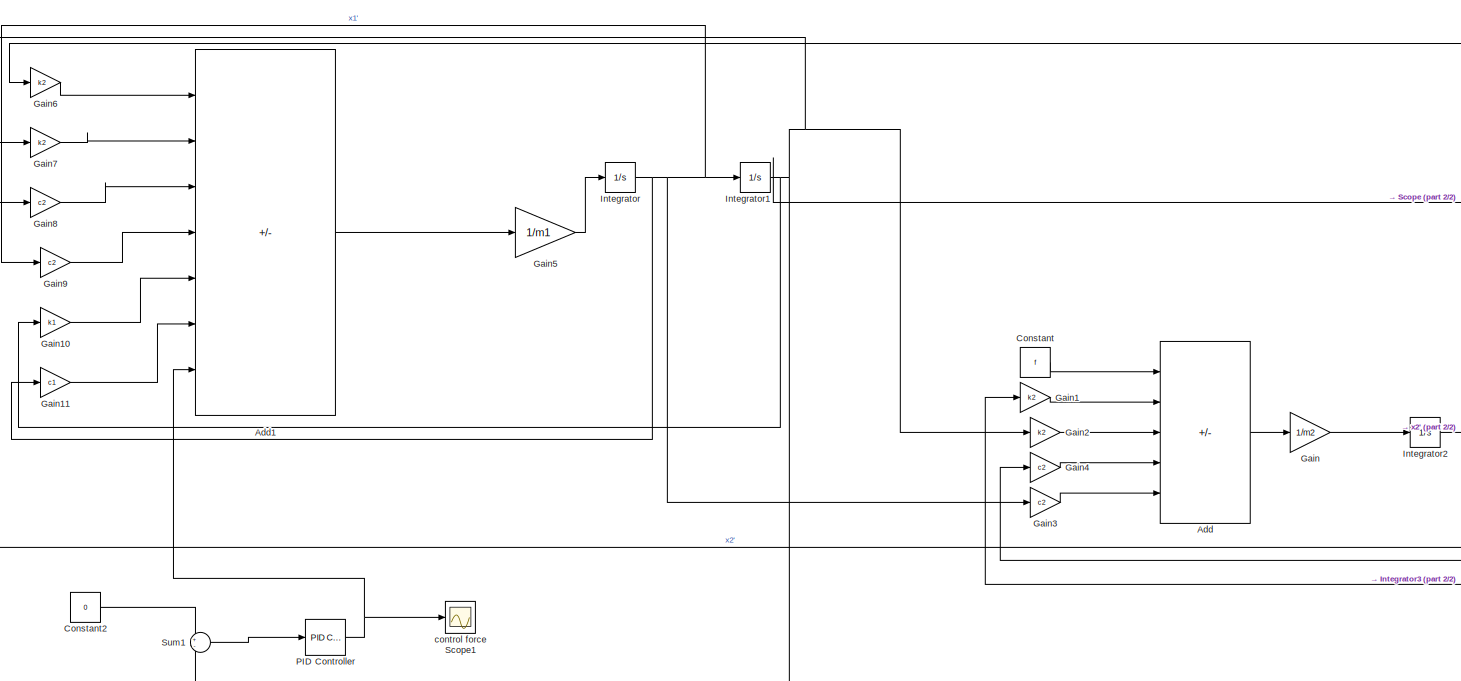
[diagram: root canvas - part 1/2, most of the canvas]
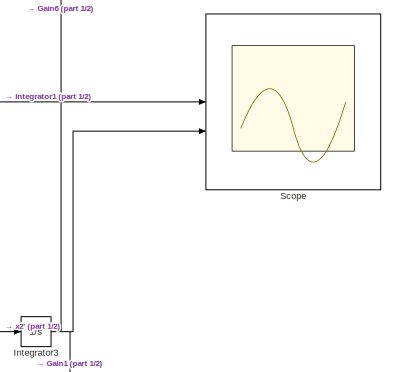
[diagram: root canvas - part 2/2, middle right region]
MODEL slx_07ca504799ab
KIND model
CONFIG AbsTol = auto
CONFIG EnableMultiTasking = off
CONFIG FixedStep = auto
CONFIG MaxStep = auto
CONFIG MinStep = auto
CONFIG RelTol = 1e-3
CONFIG SampleTimeConstraint = Unconstrained
CONFIG SolverName = VariableStepAuto
CONFIG StartTime = 0.0
CONFIG StopTime = 20
BLOCK [Sum] Add
  IconShape = rectangular
  Inputs = +-+-+
BLOCK [Sum] Add1
  IconShape = rectangular
  Inputs = +-+---+
BLOCK [Constant] Constant
  Value = f
BLOCK [Constant] Constant2
  Value = 0
BLOCK [Gain] Gain
  Gain = 1/m2
BLOCK [Gain] Gain1
  Gain = k2
BLOCK [Gain] Gain10
  Gain = k1
BLOCK [Gain] Gain11
  Gain = c1
BLOCK [Gain] Gain2
  Gain = k2
BLOCK [Gain] Gain3
  Gain = c2
BLOCK [Gain] Gain4
  Gain = c2
BLOCK [Gain] Gain5
  Gain = 1/m1
BLOCK [Gain] Gain6
  Gain = k2
BLOCK [Gain] Gain7
  Gain = k2
BLOCK [Gain] Gain8
  Gain = c2
BLOCK [Gain] Gain9
  Gain = c2
BLOCK [Integrator] Integrator
BLOCK [Integrator] Integrator1
BLOCK [Integrator] Integrator2
BLOCK [Integrator] Integrator3
BLOCK [Reference] PID Controller  REF=slpidlib/PID Controller
  LibrarySourceBlock = simulink/Continuous/PID Controller
  SourceBlock = slpidlib/PID Controller
  SourceType = PID 1dof
BLOCK [Scope] Scope
  ActiveDisplayYMaximum = 0.1744335054461563
  ActiveDisplayYMinimum = -0.019381500605128475
  Floating = off
  GraphicalSettings = {"Style":{"BackgroundColor":[0.12941176470588237,0.12941176470588237,0.12941176470588237],"AxesColor":[0.07058823529411765,0.07058823529411765,0.07058823529411765],"LabelsColor":[0.8509803921568627,0.8509803921568627,0.8509803921568627],"PreserveColors":false,"Visible":[true,true],"LineStyle":["-","-"],"LineWidth":[1.5,1.5],"BarWidth":[0.9,0.9],"LineColor":["auto","auto"],"LineFaceAlpha":[1,1],"Li...<+2112ch>
  MultipleDisplayCache = [{"MaxYLimMag":0.1744335054461563,"MaxYLimReal":0.1744335054461563,"MinYLimMag":0,"MinYLimReal":-0.019381500605128475,"PlotAsMagnitudePhase":false,"ShowGrid":true,"ShowLegend":false,"Title":"%<SignalLabel>","YLabel":""}]
  NumInputPorts = 2
  ScopeFrameLocation = window
  Visible = on
  WasSavedAsWebScope = on
  WindowPosition = [1078.000000,148.000000,563.000000,424.000000,]
BLOCK [Sum] Sum1
  Inputs = +-
BLOCK [Scope] control force Scope1
  ActiveDisplayYMaximum = 0.6660036587470094
  ActiveDisplayYMinimum = -5.9940329287230858
  DataLoggingVariableName = ScopeData1
  Floating = off
  GraphicalSettings = {"Style":{"BackgroundColor":[0.12941176470588237,0.12941176470588237,0.12941176470588237],"AxesColor":[0.07058823529411765,0.07058823529411765,0.07058823529411765],"LabelsColor":[0.8509803921568627,0.8509803921568627,0.8509803921568627],"PreserveColors":false,"Visible":[true],"LineStyle":["-"],"LineWidth":[1.5],"BarWidth":[0.9],"LineColor":["auto"],"LineFaceAlpha":[1],"LineEdgeAlpha":[1],"Marker":...<+1992ch>
  MultipleDisplayCache = [{"MaxYLimMag":5.9940329287230858,"MaxYLimReal":0.6660036587470094,"MinYLimMag":0,"MinYLimReal":-5.9940329287230858,"PlotAsMagnitudePhase":false,"ShowGrid":true,"ShowLegend":false,"Title":"%<SignalLabel>","YLabel":""}]
  NumInputPorts = 1
  ScopeFrameLocation = window
  Visible = on
  WasSavedAsWebScope = on
  WindowPosition = [1684.000000,118.000000,563.000000,424.000000,]
LINE Add1:1 -> Gain5:1
LINE Add:1 -> Gain:1
LINE Constant2:1 -> Sum1:1
LINE Constant:1 -> Add:1
LINE Gain10:1 -> Add1:5
LINE Gain11:1 -> Add1:6
LINE Gain1:1 -> Add:2
LINE Gain2:1 -> Add:3
LINE Gain3:1 -> Add:5
LINE Gain4:1 -> Add:4
LINE Gain5:1 -> Integrator:1
LINE Gain6:1 -> Add1:1
LINE Gain7:1 -> Add1:2
LINE Gain8:1 -> Add1:3
LINE Gain9:1 -> Add1:4
LINE Gain:1 -> Integrator2:1
NET Integrator1:1 -> Gain10:1, Gain2:1, Gain7:1, Scope:1, Sum1:2
NET Integrator2:1 -> Gain4:1, Gain8:1, Integrator3:1
NET Integrator3:1 -> Gain1:1, Gain6:1, Scope:2
NET Integrator:1 -> Gain11:1, Gain3:1, Gain9:1, Integrator1:1
NET PID Controller:1 -> Add1:7, control force Scope1:1
LINE Sum1:1 -> PID Controller:1
note: NET lines group one-source signal fan-out (src -> all destinations, sorted); 1:1 wires keep LINE
